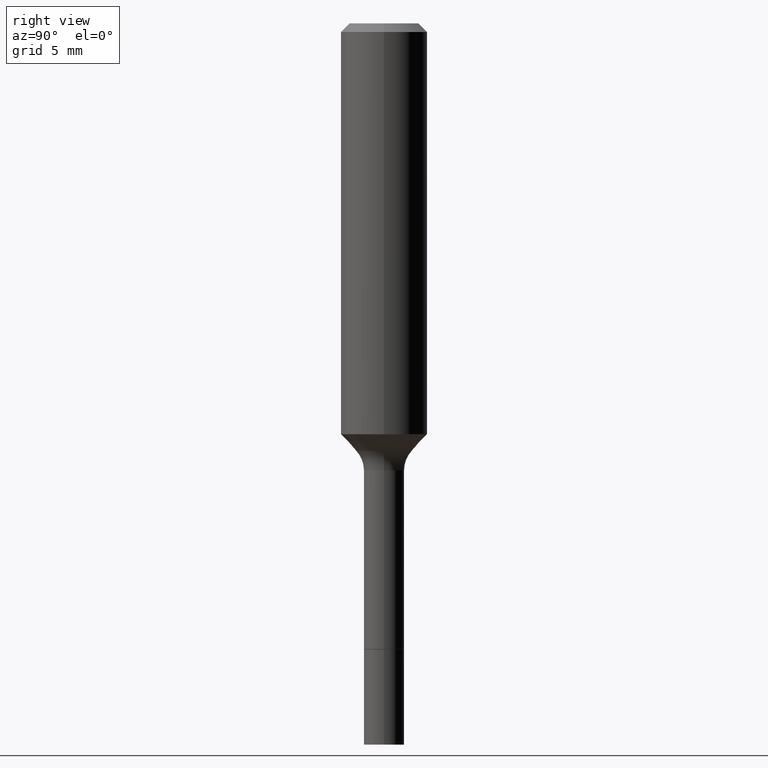
[diagram: clean part render]
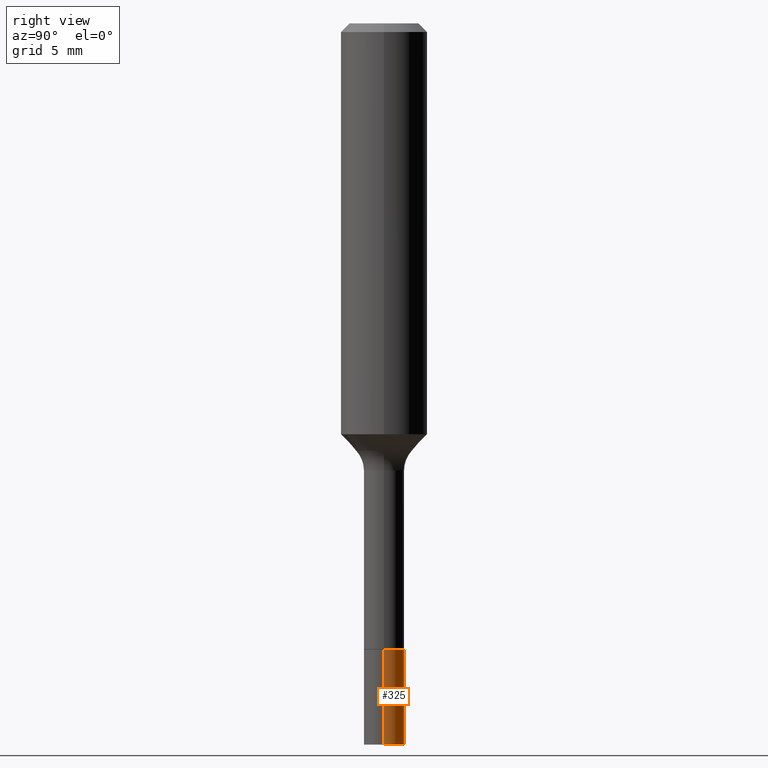
[diagram: same view with one face highlighted and labeled with its STEP entity id]
A machine part, right view. The second image highlights one B-rep face of the part: STEP entity #325.
In plain terms, the highlighted cylindrical surface (edge-blend (fillet) strip) has radius 1.3995 mm, axis along (-0, 0, 1).
Its self-contained STEP definition (entity closure, byte-faithful):
#2 = AXIS2_PLACEMENT_3D ( 'NONE', #258, #273, #358 ) ;
#12 = EDGE_LOOP ( 'NONE', ( #417, #156, #494, #508 ) ) ;
#25 = CARTESIAN_POINT ( 'NONE',  ( 0.05510000000000006559, -6.349957110954028728E-15, -1.708500000000000130 ) ) ;
#31 = CARTESIAN_POINT ( 'NONE',  ( 0.05510000000000012804, -7.257742259053245293E-15, -1.968500000000000139 ) ) ;
#38 = VECTOR ( 'NONE', #430, 39.37007874015748143 ) ;
#58 = CIRCLE ( 'NONE', #360, 0.05510000000000012804 ) ;
#67 = LINE ( 'NONE', #380, #486 ) ;
#84 = DIRECTION ( 'NONE',  ( 1.000000000000000000, -6.982962677686258822E-15, 0.000000000000000000 ) ) ;
#111 = EDGE_CURVE ( 'NONE', #291, #187, #465, .T. ) ;
#122 = CARTESIAN_POINT ( 'NONE',  ( 0.05510000000000000314, -6.349957110954028728E-15, -1.708500000000000130 ) ) ;
#156 = ORIENTED_EDGE ( 'NONE', *, *, #424, .T. ) ;
#162 = CYLINDRICAL_SURFACE ( 'NONE', #222, 0.05510000000000006559 ) ;
#175 = VERTEX_POINT ( 'NONE', #277 ) ;
#187 = VERTEX_POINT ( 'NONE', #362 ) ;
#208 = EDGE_CURVE ( 'NONE', #490, #175, #58, .T. ) ;
#222 = AXIS2_PLACEMENT_3D ( 'NONE', #492, #321, #488 ) ;
#258 = CARTESIAN_POINT ( 'NONE',  ( 4.178083455367306140E-29, -5.965195867413514353E-15, -1.708500000000000130 ) ) ;
#273 = DIRECTION ( 'NONE',  ( -2.445468806185136597E-29, 3.491481338843145583E-15, 1.000000000000000000 ) ) ;
#277 = CARTESIAN_POINT ( 'NONE',  ( -0.05510000000000012804, -6.027579394059307164E-15, -1.968500000000000139 ) ) ;
#291 = VERTEX_POINT ( 'NONE', #122 ) ;
#299 = DIRECTION ( 'NONE',  ( -2.445468806185136877E-29, 3.491481338843145188E-15, 1.000000000000000000 ) ) ;
#302 = LINE ( 'NONE', #25, #38 ) ;
#321 = DIRECTION ( 'NONE',  ( -2.445468806185136597E-29, 3.491481338843145583E-15, 1.000000000000000000 ) ) ;
#325 = ADVANCED_FACE ( 'NONE', ( #485 ), #162, .T. ) ;
#358 = DIRECTION ( 'NONE',  ( 1.000000000000000000, -6.982962677686274599E-15, 0.000000000000000000 ) ) ;
#360 = AXIS2_PLACEMENT_3D ( 'NONE', #427, #401, #84 ) ;
#362 = CARTESIAN_POINT ( 'NONE',  ( -0.05510000000000000314, -6.027579394059307953E-15, -1.708500000000000130 ) ) ;
#380 = CARTESIAN_POINT ( 'NONE',  ( -0.05510000000000006559, -5.573686820009698881E-15, -1.708500000000000130 ) ) ;
#396 = EDGE_CURVE ( 'NONE', #490, #291, #302, .T. ) ;
#401 = DIRECTION ( 'NONE',  ( -2.445468806185136597E-29, 3.491481338843145583E-15, 1.000000000000000000 ) ) ;
#417 = ORIENTED_EDGE ( 'NONE', *, *, #208, .T. ) ;
#424 = EDGE_CURVE ( 'NONE', #175, #187, #67, .T. ) ;
#427 = CARTESIAN_POINT ( 'NONE',  ( 4.813905344975441835E-29, -6.872981015512731707E-15, -1.968500000000000139 ) ) ;
#430 = DIRECTION ( 'NONE',  ( -2.445468806185136877E-29, 3.491481338843145188E-15, 1.000000000000000000 ) ) ;
#465 = CIRCLE ( 'NONE', #2, 0.05510000000000000314 ) ;
#485 = FACE_OUTER_BOUND ( 'NONE', #12, .T. ) ;
#486 = VECTOR ( 'NONE', #299, 39.37007874015748143 ) ;
#488 = DIRECTION ( 'NONE',  ( 1.000000000000000000, -6.982962677686266711E-15, 0.000000000000000000 ) ) ;
#490 = VERTEX_POINT ( 'NONE', #31 ) ;
#492 = CARTESIAN_POINT ( 'NONE',  ( 4.178083455367306140E-29, -5.965195867413514353E-15, -1.708500000000000130 ) ) ;
#494 = ORIENTED_EDGE ( 'NONE', *, *, #111, .F. ) ;
#508 = ORIENTED_EDGE ( 'NONE', *, *, #396, .F. ) ;